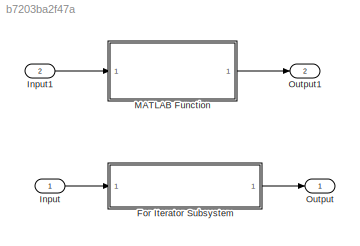
MODEL slx_b7203ba2f47a
KIND model
CONFIG AbsTol = auto
CONFIG EnableMultiTasking = off
CONFIG FixedStep = auto
CONFIG MaxStep = auto
CONFIG MinStep = auto
CONFIG RelTol = 1e-3
CONFIG SampleTimeConstraint = Unconstrained
CONFIG SolverName = VariableStepAuto
CONFIG StartTime = 0.0
CONFIG StopTime = 10.0
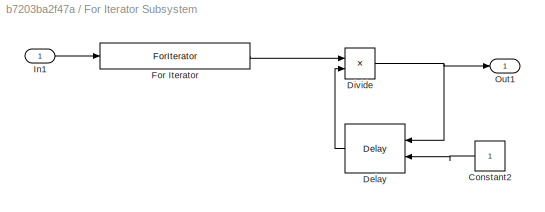
BLOCK [SubSystem] For Iterator Subsystem
  Ports = [1, 1]
  RequestExecContextInheritance = off
  TreatAsAtomicUnit = on
BLOCK [Constant] For Iterator Subsystem/Constant2
BLOCK [Delay] For Iterator Subsystem/Delay
  DelayLength = 1
  InitialConditionSource = Input port
  InputPortMap = u0,p4
  Ports = [2, 1]
BLOCK [Product] For Iterator Subsystem/Divide
  Inputs = **
  Ports = [2, 1]
BLOCK [ForIterator] For Iterator Subsystem/For Iterator
  IterationSource = external
  Ports = [1, 1]
BLOCK [Inport] For Iterator Subsystem/In1
BLOCK [Outport] For Iterator Subsystem/Out1
BLOCK [Inport] Input
BLOCK [Inport] Input1
  Port = 2
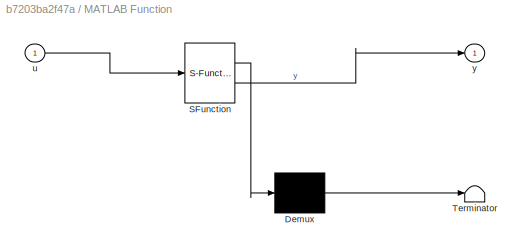
BLOCK [SubSystem] MATLAB Function
  ErrorFcn = Stateflow.Translate.translate
  PermitHierarchicalResolution = ExplicitOnly
  Ports = [1, 1]
  RequestExecContextInheritance = off
  SFBlockType = MATLAB Function
  TreatAsAtomicUnit = on
BLOCK [Demux] MATLAB Function/ Demux 
  Outputs = 1
  Ports = [1, 1]
BLOCK [S-Function] MATLAB Function/ SFunction 
  EnableBusSupport = on
  FunctionName = sf_sfun
  PortCounts = [1 2]
  Ports = [1, 2]
  SFcnIsStateOwnerBlock = off
  SFunctionDeploymentMode = off
  Tag = Stateflow S-Function 2
BLOCK [Terminator] MATLAB Function/ Terminator 
BLOCK [Inport] MATLAB Function/u
BLOCK [Outport] MATLAB Function/y
BLOCK [Outport] Output
BLOCK [Outport] Output1
  Port = 2
LINE For Iterator Subsystem/Constant2:1 -> For Iterator Subsystem/Delay:2
LINE For Iterator Subsystem/Delay:1 -> For Iterator Subsystem/Divide:2
NET For Iterator Subsystem/Divide:1 -> For Iterator Subsystem/Delay:1, For Iterator Subsystem/Out1:1
LINE For Iterator Subsystem/For Iterator:1 -> For Iterator Subsystem/Divide:1
LINE For Iterator Subsystem/In1:1 -> For Iterator Subsystem/For Iterator:1
LINE For Iterator Subsystem:1 -> Output:1
LINE Input1:1 -> MATLAB Function:1
LINE Input:1 -> For Iterator Subsystem:1
LINE MATLAB Function:1 -> Output1:1
note: NET lines group one-source signal fan-out (src -> all destinations, sorted); 1:1 wires keep LINE
CHART MATLAB Function states=1 transitions=1
  STATE_LABEL 'eML_blk_kernel()'
  STATE_LABEL 'SCRIPT:\nfunction y = factorial_function(u)\n    fact = 1;\n    while u > 0\n        fact = fact * u;\n        u = u - 1;\n    end\n    y = fact;\nend\n'
CHART  states=0 transitions=0
